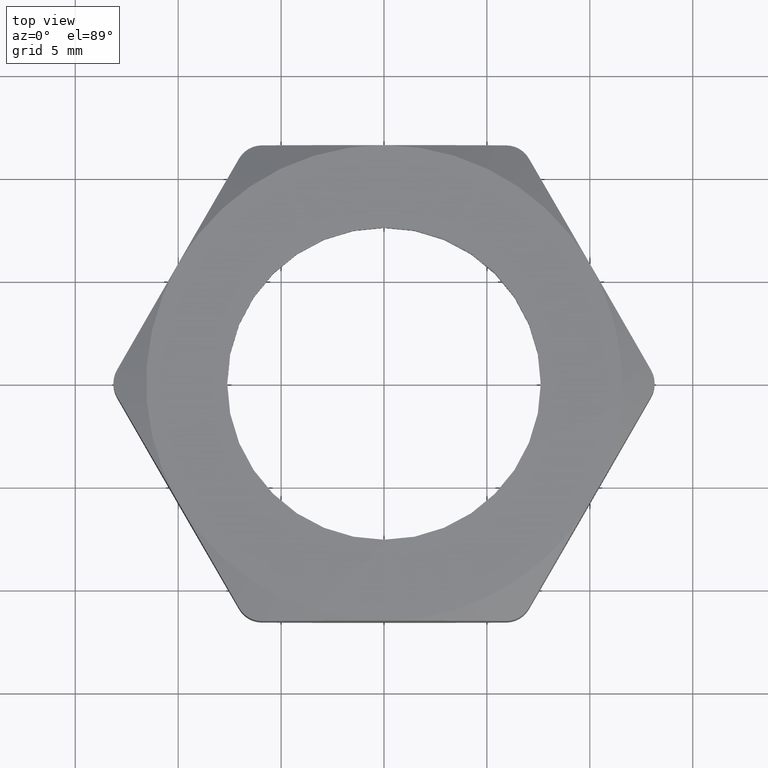
[diagram: clean part render]
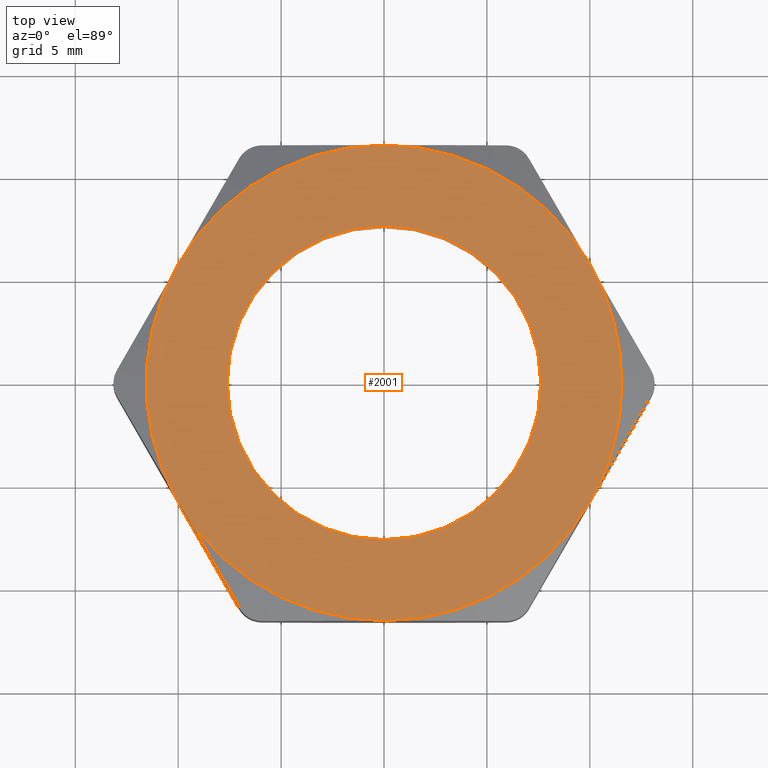
[diagram: same view with one face highlighted and labeled with its STEP entity id]
A machine part, top view. The second image highlights one B-rep face of the part: STEP entity #2001.
In plain terms, the highlighted planar face has unit normal (0, 0, 1).
Its self-contained STEP definition (entity closure, byte-faithful):
#151 = CARTESIAN_POINT ( 'NONE',  ( 0.3940415587219196500, 0.2275000000000000600, 0.2399999999999999900 ) ) ;
#152 = CARTESIAN_POINT ( 'NONE',  ( 0.4550000000000000200, 0.0000000000000000000, 0.2399999999999999900 ) ) ;
#153 = DIRECTION ( 'NONE',  ( 1.000000000000000000, 0.0000000000000000000, 0.0000000000000000000 ) ) ;
#154 = DIRECTION ( 'NONE',  ( 0.0000000000000000000, 0.0000000000000000000, 1.000000000000000000 ) ) ;
#155 = CARTESIAN_POINT ( 'NONE',  ( 0.0000000000000000000, 0.0000000000000000000, 0.2399999999999999900 ) ) ;
#156 = AXIS2_PLACEMENT_3D ( 'NONE', #155, #154, #153 ) ;
#161 = CIRCLE ( 'NONE', #156, 0.4550000000000000200 ) ;
#173 = CARTESIAN_POINT ( 'NONE',  ( 0.2999999999999999900, 3.796405077356794500E-017, 0.2399999999999999900 ) ) ;
#174 = DIRECTION ( 'NONE',  ( 1.000000000000000000, 0.0000000000000000000, 0.0000000000000000000 ) ) ;
#175 = DIRECTION ( 'NONE',  ( 0.0000000000000000000, 0.0000000000000000000, 1.000000000000000000 ) ) ;
#176 = AXIS2_PLACEMENT_3D ( 'NONE', #183, #175, #174 ) ;
#177 = CIRCLE ( 'NONE', #176, 0.2999999999999999900 ) ;
#183 = CARTESIAN_POINT ( 'NONE',  ( 0.0000000000000000000, 0.0000000000000000000, 0.2399999999999999900 ) ) ;
#326 = CARTESIAN_POINT ( 'NONE',  ( -0.2999999999999999900, 0.0000000000000000000, 0.2399999999999999900 ) ) ;
#546 = DIRECTION ( 'NONE',  ( 0.0000000000000000000, 0.0000000000000000000, 1.000000000000000000 ) ) ;
#547 = CARTESIAN_POINT ( 'NONE',  ( 0.0000000000000000000, 0.0000000000000000000, 0.2399999999999999900 ) ) ;
#548 = AXIS2_PLACEMENT_3D ( 'NONE', #547, #546, #599 ) ;
#549 = CIRCLE ( 'NONE', #548, 0.4550000000000000200 ) ;
#578 = DIRECTION ( 'NONE',  ( 1.000000000000000000, 0.0000000000000000000, 0.0000000000000000000 ) ) ;
#579 = DIRECTION ( 'NONE',  ( 0.0000000000000000000, 0.0000000000000000000, 1.000000000000000000 ) ) ;
#580 = CARTESIAN_POINT ( 'NONE',  ( 0.0000000000000000000, 0.0000000000000000000, 0.2399999999999999900 ) ) ;
#581 = AXIS2_PLACEMENT_3D ( 'NONE', #580, #579, #578 ) ;
#582 = CIRCLE ( 'NONE', #581, 0.4550000000000000200 ) ;
#584 = DIRECTION ( 'NONE',  ( 1.000000000000000000, 0.0000000000000000000, 0.0000000000000000000 ) ) ;
#585 = DIRECTION ( 'NONE',  ( 0.0000000000000000000, 0.0000000000000000000, 1.000000000000000000 ) ) ;
#586 = CARTESIAN_POINT ( 'NONE',  ( 0.0000000000000000000, 0.0000000000000000000, 0.2399999999999999900 ) ) ;
#587 = AXIS2_PLACEMENT_3D ( 'NONE', #586, #585, #584 ) ;
#588 = CIRCLE ( 'NONE', #587, 0.4550000000000000200 ) ;
#589 = DIRECTION ( 'NONE',  ( 1.000000000000000000, 0.0000000000000000000, 0.0000000000000000000 ) ) ;
#590 = DIRECTION ( 'NONE',  ( 0.0000000000000000000, 0.0000000000000000000, 1.000000000000000000 ) ) ;
#591 = CARTESIAN_POINT ( 'NONE',  ( 0.0000000000000000000, 0.0000000000000000000, 0.2399999999999999900 ) ) ;
#592 = AXIS2_PLACEMENT_3D ( 'NONE', #591, #590, #589 ) ;
#593 = CIRCLE ( 'NONE', #592, 0.4550000000000000200 ) ;
#594 = DIRECTION ( 'NONE',  ( 1.000000000000000000, 0.0000000000000000000, 0.0000000000000000000 ) ) ;
#595 = DIRECTION ( 'NONE',  ( 0.0000000000000000000, 0.0000000000000000000, 1.000000000000000000 ) ) ;
#596 = CARTESIAN_POINT ( 'NONE',  ( 0.0000000000000000000, 0.0000000000000000000, 0.2399999999999999900 ) ) ;
#597 = AXIS2_PLACEMENT_3D ( 'NONE', #596, #595, #594 ) ;
#598 = CIRCLE ( 'NONE', #597, 0.4550000000000000200 ) ;
#599 = DIRECTION ( 'NONE',  ( 1.000000000000000000, 0.0000000000000000000, 0.0000000000000000000 ) ) ;
#698 = CARTESIAN_POINT ( 'NONE',  ( 0.0000000000000000000, -0.4549999999999999000, 0.2399999999999999900 ) ) ;
#792 = CARTESIAN_POINT ( 'NONE',  ( 0.3940415587219195400, -0.2275000000000000100, 0.2399999999999999900 ) ) ;
#839 = CARTESIAN_POINT ( 'NONE',  ( 0.0000000000000000000, 0.4550000000000000700, 0.2399999999999999900 ) ) ;
#854 = CARTESIAN_POINT ( 'NONE',  ( -0.3940415587219196500, 0.2275000000000000600, 0.2399999999999999900 ) ) ;
#899 = CARTESIAN_POINT ( 'NONE',  ( -0.3940415587219198700, -0.2275000000000000100, 0.2399999999999999900 ) ) ;
#981 = DIRECTION ( 'NONE',  ( 1.000000000000000000, 0.0000000000000000000, 0.0000000000000000000 ) ) ;
#982 = DIRECTION ( 'NONE',  ( 0.0000000000000000000, 0.0000000000000000000, 1.000000000000000000 ) ) ;
#983 = CARTESIAN_POINT ( 'NONE',  ( 0.0000000000000000000, 0.0000000000000000000, 0.2399999999999999900 ) ) ;
#984 = AXIS2_PLACEMENT_3D ( 'NONE', #983, #982, #981 ) ;
#985 = CIRCLE ( 'NONE', #984, 0.4550000000000000200 ) ;
#1006 = DIRECTION ( 'NONE',  ( 1.000000000000000000, 0.0000000000000000000, 0.0000000000000000000 ) ) ;
#1007 = DIRECTION ( 'NONE',  ( 0.0000000000000000000, 0.0000000000000000000, 1.000000000000000000 ) ) ;
#1008 = CARTESIAN_POINT ( 'NONE',  ( 0.0000000000000000000, 0.0000000000000000000, 0.2399999999999999900 ) ) ;
#1009 = AXIS2_PLACEMENT_3D ( 'NONE', #1008, #1007, #1006 ) ;
#1010 = CIRCLE ( 'NONE', #1009, 0.2999999999999999900 ) ;
#1011 = DIRECTION ( 'NONE',  ( 1.000000000000000000, 0.0000000000000000000, 0.0000000000000000000 ) ) ;
#1012 = DIRECTION ( 'NONE',  ( 0.0000000000000000000, 0.0000000000000000000, 1.000000000000000000 ) ) ;
#1013 = CARTESIAN_POINT ( 'NONE',  ( -0.7880831174438394100, -0.4549999999999999000, 0.2399999999999999900 ) ) ;
#1014 = AXIS2_PLACEMENT_3D ( 'NONE', #1013, #1012, #1011 ) ;
#1015 = PLANE ( 'NONE',  #1014 ) ;
#1024 = FACE_OUTER_BOUND ( 'NONE', #2006, .T. ) ;
#1026 = FACE_BOUND ( 'NONE', #2002, .T. ) ;
#1548 = EDGE_CURVE ( 'NONE', #1549, #1550, #161, .T. ) ;
#1549 = VERTEX_POINT ( 'NONE', #152 ) ;
#1550 = VERTEX_POINT ( 'NONE', #151 ) ;
#1569 = EDGE_CURVE ( 'NONE', #1652, #1570, #177, .T. ) ;
#1570 = VERTEX_POINT ( 'NONE', #173 ) ;
#1652 = VERTEX_POINT ( 'NONE', #326 ) ;
#1750 = ORIENTED_EDGE ( 'NONE', *, *, #1751, .T. ) ;
#1751 = EDGE_CURVE ( 'NONE', #1955, #1843, #549, .T. ) ;
#1752 = ORIENTED_EDGE ( 'NONE', *, *, #1753, .T. ) ;
#1753 = EDGE_CURVE ( 'NONE', #1843, #1907, #598, .T. ) ;
#1756 = EDGE_CURVE ( 'NONE', #1550, #1930, #593, .T. ) ;
#1757 = ORIENTED_EDGE ( 'NONE', *, *, #1758, .T. ) ;
#1758 = EDGE_CURVE ( 'NONE', #1930, #1946, #588, .T. ) ;
#1759 = ORIENTED_EDGE ( 'NONE', *, *, #1760, .T. ) ;
#1760 = EDGE_CURVE ( 'NONE', #1946, #1955, #582, .T. ) ;
#1843 = VERTEX_POINT ( 'NONE', #698 ) ;
#1907 = VERTEX_POINT ( 'NONE', #792 ) ;
#1930 = VERTEX_POINT ( 'NONE', #839 ) ;
#1946 = VERTEX_POINT ( 'NONE', #854 ) ;
#1955 = VERTEX_POINT ( 'NONE', #899 ) ;
#1989 = ORIENTED_EDGE ( 'NONE', *, *, #1990, .T. ) ;
#1990 = EDGE_CURVE ( 'NONE', #1907, #1549, #985, .T. ) ;
#1991 = ORIENTED_EDGE ( 'NONE', *, *, #1548, .T. ) ;
#1992 = ORIENTED_EDGE ( 'NONE', *, *, #1756, .T. ) ;
#2001 = ADVANCED_FACE ( 'NONE', ( #1026, #1024 ), #1015, .T. ) ;
#2002 = EDGE_LOOP ( 'NONE', ( #2003, #2004 ) ) ;
#2003 = ORIENTED_EDGE ( 'NONE', *, *, #1569, .F. ) ;
#2004 = ORIENTED_EDGE ( 'NONE', *, *, #2005, .F. ) ;
#2005 = EDGE_CURVE ( 'NONE', #1570, #1652, #1010, .T. ) ;
#2006 = EDGE_LOOP ( 'NONE', ( #1989, #1991, #1992, #1757, #1759, #1750, #1752 ) ) ;